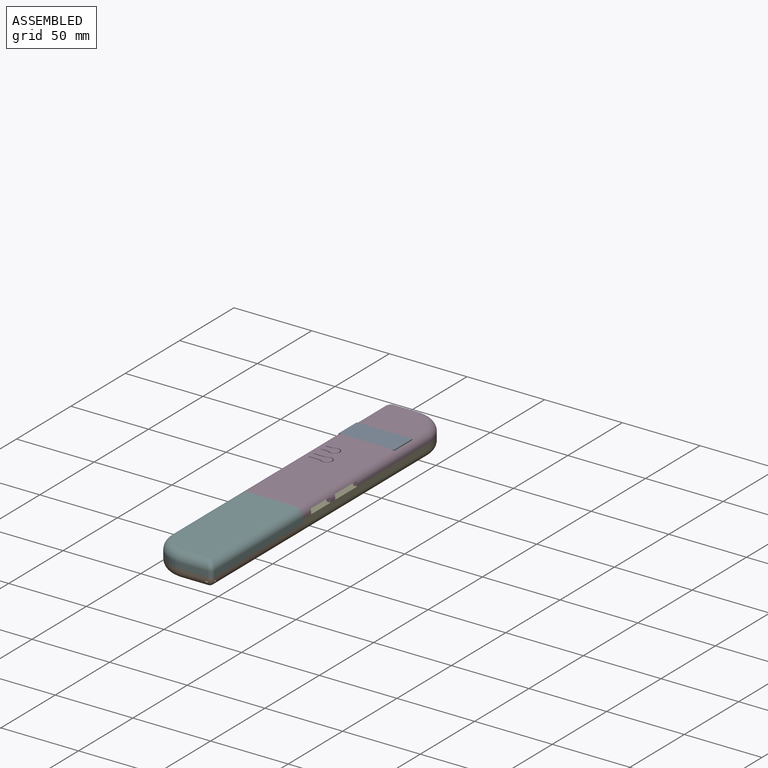
[diagram: assembled view]
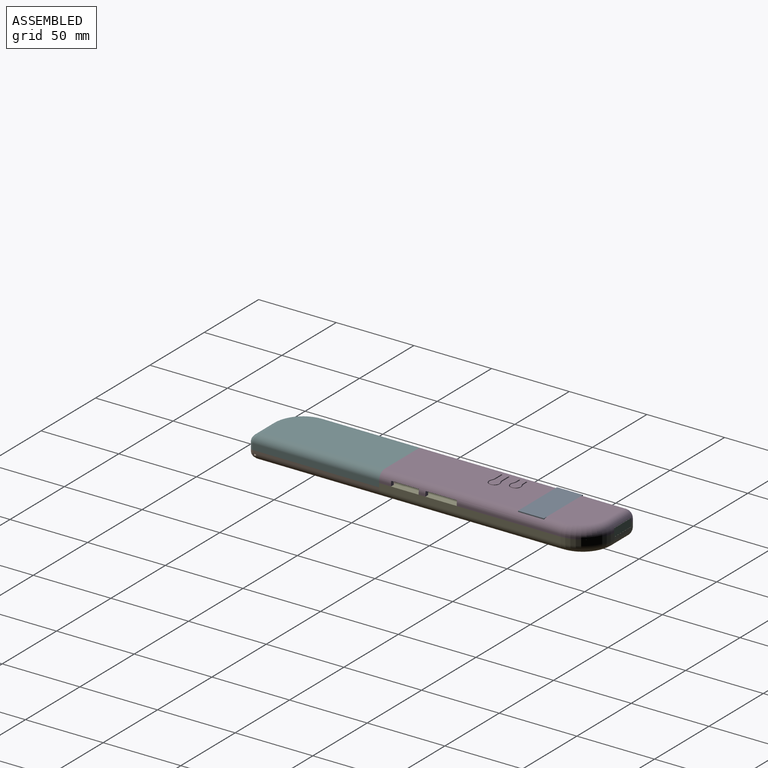
[diagram: assembled view, second angle]
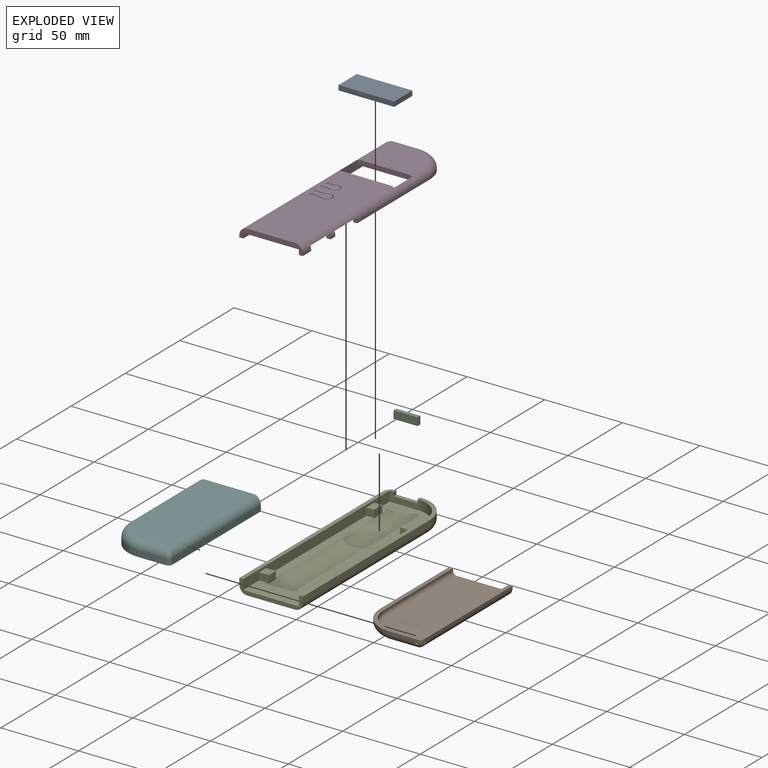
[diagram: exploded view]
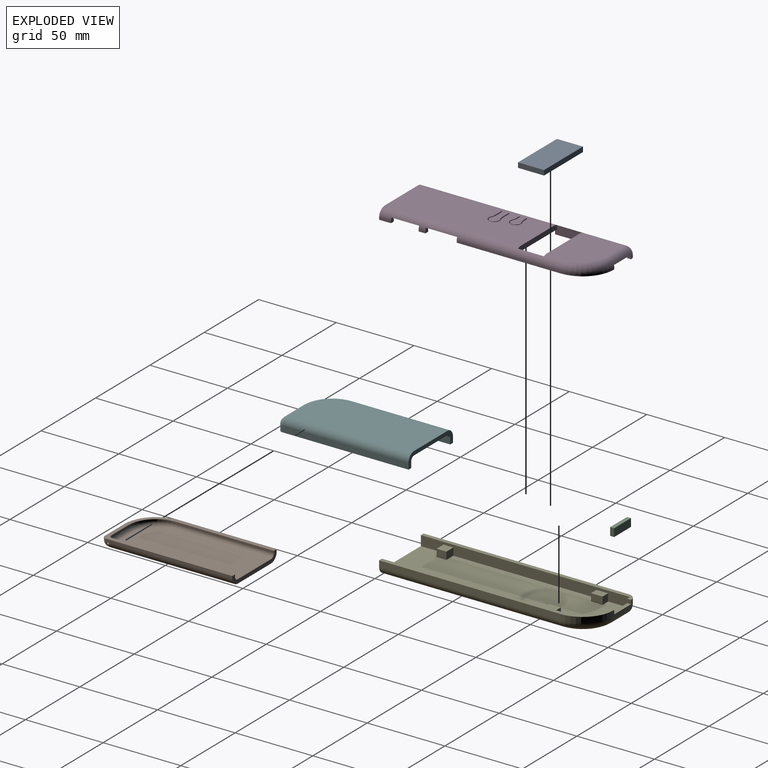
[diagram: exploded view, second angle]
ASSEMBLY  parts=6 mates=5
PART A: 6 faces, bbox 35.8x16.8x3.2 mm
  f0: plane 35.81x3.18mm, normal (0,1,0), area 113.7mm2, adj f1,f3,f4,f5
  f1: plane 16.76x3.18mm, normal (-1,0,0), area 53.2mm2, adj f0,f2,f4,f5
  f2: plane 35.81x3.18mm, normal (0,-1,0), area 113.7mm2, adj f1,f3,f4,f5
  f3: plane 16.76x3.18mm, normal (1,0,0), area 53.2mm2, adj f0,f2,f4,f5
  f4: plane 35.81x16.76mm, normal (0,0,1), area 600.4mm2, adj f0,f1,f2,f3
  f5: plane 35.81x16.76mm, normal (0,0,-1), area 600.4mm2, adj f0,f1,f2,f3
PART B: 29 faces, bbox 43.1x85.5x8.7 mm
  f0: cylinder r=5.08mm len=81.28mm, axis (0,1,0), area 637.6mm2, adj f5,f6,f12,f16,f25
  f1: cylinder r=5.08mm len=18.03mm, axis (1,0,0), area 132.9mm2, adj f4,f12,f16,f17,f27
  f2: plane 63.5x1.27mm, normal (-1,0,0), area 80.6mm2, adj f3,f6,f11,f18
  f3: cylinder r=20.32mm len=20.32mm, axis (0,0,-1), area 40.5mm2, adj f2,f4,f11,f17
  f4: plane 18.03x1.27mm, normal (0,-1,0), area 22.9mm2, adj f1,f3,f11,f15
  f5: plane 81.28x1.27mm, normal (1,0,0), area 103.2mm2, adj f0,f6,f11,f15
  f6: plane 40.89x6.35mm, normal (0,1,0), area 114.9mm2, adj f0,f2,f5,f7,f10,f11,f12,f13
  f7: plane 78.74x1.27mm, normal (-1,0,0), area 100mm2, adj f6,f11,f14,f19
  f8: plane 15.49x1.27mm, normal (0,1,0), area 19.7mm2, adj f9,f11,f14,f21
  f9: cylinder r=17.78mm len=17.78mm, axis (0,0,-1), area 35.5mm2, adj f8,f10,f11,f22
  f10: plane 63.5x1.27mm, normal (1,0,0), area 80.6mm2, adj f6,f9,f11,f23
  f11: plane 83.82x40.89mm, normal (0,0,1), area 496mm2, adj f2,f3,f4,f5,f6,f7,f8,f9
  f12: plane 78.74x30.73mm, normal (0,0,-1), area 2370.2mm2, adj f0,f1,f6,f17,f18
  f13: plane 78.74x30.73mm, normal (0,0,1), area 2370.2mm2, adj f6,f19,f21,f22,f23
  f14: cylinder r=2.54mm len=2.54mm, axis (0,0,1), area 5.1mm2, adj f7,f8,f11,f20
  f15: cylinder r=2.54mm len=2.54mm, axis (0,0,1), area 5.1mm2, adj f4,f5,f11,f16
  f16: bspline ~5.33x5.08mm, area 21.3mm2, adj f0,f1,f15,f26,f28
  f17: torus R=15.24mm, axis (0,0,1), area 231.6mm2, adj f1,f3,f12,f18
  f18: cylinder r=5.08mm len=63.5mm, axis (0,-1,0), area 506.7mm2, adj f2,f6,f12,f17
  f19: cylinder r=2.54mm len=78.74mm, axis (0,-1,0), area 314.2mm2, adj f6,f7,f13,f20
  f20: sphere r=2.54mm, area 10.1mm2, adj f14,f19,f21
  f21: cylinder r=2.54mm len=15.49mm, axis (-1,0,0), area 61.8mm2, adj f8,f13,f20,f22
  f22: torus R=15.24mm, axis (0,0,1), area 105.6mm2, adj f9,f13,f21,f23
  f23: cylinder r=2.54mm len=63.5mm, axis (0,1,0), area 253.4mm2, adj f6,f10,f13,f22
  f24: cylinder r=0.51mm len=5.02mm, axis (0.71,0.71,0), area 14mm2, adj f25,f26,f27,f28
  f25: bspline ~2.08x1.6mm, area 1.6mm2, adj f0,f24,f26
  f26: bspline ~1.04x0.74mm, area 0.5mm2, adj f16,f24,f25
  f27: bspline ~2.08x1.6mm, area 1.6mm2, adj f1,f24,f28
  f28: bspline ~1.13x0.74mm, area 0.5mm2, adj f16,f24,f27
PART C: 6 faces, bbox 15.5x2.5x5.1 mm
  f0: plane 5.08x2.54mm, normal (1,0,0), area 12.9mm2, adj f1,f3,f4,f5
  f1: plane 15.49x2.54mm, normal (0,0,-1), area 39.4mm2, adj f0,f2,f4,f5
  f2: plane 5.08x2.54mm, normal (-1,0,0), area 12.9mm2, adj f1,f3,f4,f5
  f3: plane 15.49x2.54mm, normal (0,0,1), area 39.4mm2, adj f0,f2,f4,f5
  f4: plane 15.49x5.08mm, normal (0,1,0), area 78.7mm2, adj f0,f1,f2,f3
  f5: plane 15.49x5.08mm, normal (0,-1,0), area 78.7mm2, adj f0,f1,f2,f3
PART D: 77 faces, bbox 42.8x139x6.9 mm
  f0: plane 50.8x5.08mm, normal (0,0,-1), area 129.9mm2, adj f12,f14,f24,f25,f40,f74
  f1: plane 6.19x2.54mm, normal (0,-1,0), area 10.2mm2, adj f5,f53,f54,f57,f64,f73
  f2: plane 2.94x2.52mm, normal (0,-1,0), area 5.1mm2, adj f5,f55,f62,f71,f72
  f3: plane 87.63x40.15mm, normal (0,0,-1), area 3116mm2, adj f11,f12,f15,f18,f20,f21,f23,f24
  f4: plane 6.6x6.1mm, normal (0,0,-1), area 31.7mm2, adj f51,f55,f62,f63
  f5: plane 87.63x30.73mm, normal (0,0,1), area 2659.2mm2, adj f1,f2,f11,f15,f35,f38,f41,f42
  f6: plane 6.6x6.1mm, normal (0,0,-1), area 31.7mm2, adj f45,f54,f56,f57
  f7: plane 66.89x1.27mm, normal (1,0,0), area 84.9mm2, adj f17,f23,f27,f35
  f8: plane 4.32x1.27mm, normal (1,0,0), area 5.5mm2, adj f28,f29,f31,f35
  f9: plane 71.12x1.27mm, normal (-1,0,0), area 90.3mm2, adj f15,f21,f22,f38
  f10: plane 35.81x30.23mm, normal (0,0,-1), area 1014.7mm2, adj f12,f13,f18,f25,f26
  f11: plane 35.81x3.18mm, normal (0,1,0), area 112.6mm2, adj f3,f5,f12,f18,f35,f38
  f12: plane 48.26x5.67mm, normal (1,0,0), area 195mm2, adj f0,f3,f10,f11,f13,f24,f25,f38
  f13: plane 35.81x3.18mm, normal (0,-1,0), area 112.6mm2, adj f10,f12,f18,f19,f35,f38
  f14: plane 45.72x1.27mm, normal (-1,0,0), area 58.1mm2, adj f0,f24,f38,f40
  f15: plane 40.89x6.35mm, normal (0,-1,0), area 134.9mm2, adj f3,f5,f9,f16,f20,f22,f32,f34
  f16: plane 7.62x1.27mm, normal (1,0,0), area 9.7mm2, adj f15,f33,f34,f35
  f17: cylinder r=20.32mm len=20.32mm, axis (0,0,1), area 40.5mm2, adj f7,f27,f36,f76
  f18: plane 66.89x5.67mm, normal (-1,0,0), area 254.2mm2, adj f3,f10,f11,f13,f23,f26,f27,f35
  f19: plane 30.73x27.69mm, normal (0,0,1), area 801.1mm2, adj f13,f35,f36,f37,f38
  f20: plane 71.12x3.18mm, normal (1,0,0), area 225.8mm2, adj f3,f15,f21,f22
  f21: plane 3.18x2.54mm, normal (0,1,0), area 7.8mm2, adj f3,f9,f20,f22,f38
  f22: plane 71.12x2.54mm, normal (0,0,-1), area 180.6mm2, adj f9,f15,f20,f21
  f23: plane 3.18x2.54mm, normal (0,-1,0), area 7.8mm2, adj f3,f7,f18,f27,f35
  f24: plane 3.18x2.54mm, normal (0,-1,0), area 7.8mm2, adj f0,f3,f12,f14,f38
  f25: plane 18.03x3.18mm, normal (0,-1,0), area 17.9mm2, adj f0,f10,f12,f26,f74,f75
  f26: cylinder r=17.78mm len=17.78mm, axis (0,0,1), area 88.7mm2, adj f10,f18,f25,f27,f76
  f27: plane 87.21x20.32mm, normal (0,0,-1), area 245.9mm2, adj f7,f17,f18,f23,f26,f76
  f28: plane 3.18x2.54mm, normal (0,-1,0), area 7.8mm2, adj f3,f8,f30,f31,f35
  f29: plane 3.18x2.54mm, normal (0,1,0), area 7.8mm2, adj f3,f8,f30,f31,f35
  f30: plane 4.32x3.18mm, normal (-1,0,0), area 13.7mm2, adj f3,f28,f29,f31
  f31: plane 4.32x2.54mm, normal (0,0,-1), area 11mm2, adj f8,f28,f29,f30
  f32: plane 7.62x3.18mm, normal (-1,0,0), area 24.2mm2, adj f3,f15,f33,f34
  f33: plane 3.18x2.54mm, normal (0,1,0), area 7.8mm2, adj f3,f16,f32,f34,f35
  f34: plane 7.62x2.54mm, normal (0,0,-1), area 19.4mm2, adj f15,f16,f32,f33
  f35: cylinder r=5.08mm len=116.84mm, axis (0,1,0), area 813.5mm2, adj f3,f5,f7,f8,f11,f13,f15,f16
  f36: torus R=15.24mm, axis (0,0,1), area 231.6mm2, adj f17,f19,f35,f37,f76
  f37: cylinder r=5.08mm len=15.49mm, axis (-1,0,0), area 103.7mm2, adj f19,f36,f39,f75
  f38: cylinder r=5.08mm len=132.08mm, axis (0,-1,0), area 979.6mm2, adj f3,f5,f9,f11,f12,f13,f14,f15
  f39: sphere r=5.08mm, area 40.5mm2, adj f37,f38,f40,f74
  f40: cylinder r=5.08mm len=5.08mm, axis (0,0,1), area 10.1mm2, adj f0,f14,f39,f74
  f41: plane 6.29x3.18mm, normal (0,-1,0), area 20mm2, adj f3,f5,f59,f66
  f42: cylinder r=3.56mm len=7.11mm, axis (0,0,-1), area 45.9mm2, adj f3,f5,f58,f59
  f43: plane 6.29x3.18mm, normal (0,1,0), area 20mm2, adj f3,f5,f58,f65
  f44: plane 5.03x3.18mm, normal (1,0,0), area 8.5mm2, adj f3,f5,f64,f65,f66,f67,f73
  f45: cylinder r=3.05mm len=6.1mm, axis (0,0,-1), area 40.8mm2, adj f5,f6,f56,f57
  f46: plane 6.19x2.54mm, normal (0,1,0), area 10.2mm2, adj f5,f53,f54,f56,f67,f73
  f47: plane 3.18x3.06mm, normal (0,-1,0), area 9.7mm2, adj f3,f5,f60,f69
  f48: cylinder r=3.56mm len=7.11mm, axis (0,0,-1), area 45.9mm2, adj f3,f5,f60,f61
  f49: plane 3.18x3.06mm, normal (0,1,0), area 9.7mm2, adj f3,f5,f61,f70
  f50: plane 5.03x3.18mm, normal (1,0,0), area 8.4mm2, adj f3,f5,f68,f69,f70,f71,f72
  f51: cylinder r=3.05mm len=6.1mm, axis (0,0,-1), area 40.8mm2, adj f4,f5,f62,f63
  f52: plane 2.94x2.52mm, normal (0,1,0), area 5.1mm2, adj f5,f55,f63,f68,f72
  f53: plane 3.81x3.04mm, normal (0,0,-1), area 10.9mm2, adj f1,f46,f54,f73
  f54: torus R=7.25mm, axis (0,0,-1), area 16.8mm2, adj f1,f6,f46,f53,f56,f57
  f55: torus R=7.25mm, axis (0,0,-1), area 15.3mm2, adj f2,f4,f52,f62,f63,f72
  f56: cylinder r=5.08mm len=3.18mm, axis (0,0,-1), area 8.1mm2, adj f5,f6,f45,f46,f54
  f57: cylinder r=5.08mm len=3.18mm, axis (0,0,-1), area 8.1mm2, adj f1,f5,f6,f45,f54
  f58: cylinder r=5.08mm len=3.18mm, axis (0,0,-1), area 7.5mm2, adj f3,f5,f42,f43
  f59: cylinder r=5.08mm len=3.18mm, axis (0,0,-1), area 7.5mm2, adj f3,f5,f41,f42
  f60: cylinder r=5.08mm len=3.18mm, axis (0,0,-1), area 7.5mm2, adj f3,f5,f47,f48
  f61: cylinder r=5.08mm len=3.18mm, axis (0,0,-1), area 7.5mm2, adj f3,f5,f48,f49
  f62: cylinder r=5.08mm len=3.18mm, axis (0,0,-1), area 8.1mm2, adj f2,f4,f5,f51,f55
  f63: cylinder r=5.08mm len=3.18mm, axis (0,0,-1), area 8.1mm2, adj f4,f5,f51,f52,f55
  f64: cylinder r=0.13mm len=1.84mm, axis (0,0,-1), area 0.3mm2, adj f1,f5,f44,f73
  f65: cylinder r=0.13mm len=3.18mm, axis (0,0,1), area 0.6mm2, adj f3,f5,f43,f44
  f66: cylinder r=0.13mm len=3.18mm, axis (0,0,-1), area 0.6mm2, adj f3,f5,f41,f44
  f67: cylinder r=0.13mm len=1.84mm, axis (0,0,1), area 0.3mm2, adj f5,f44,f46,f73
  f68: cylinder r=0.13mm len=1.84mm, axis (0,0,1), area 0.3mm2, adj f5,f50,f52,f72
  f69: cylinder r=0.13mm len=3.18mm, axis (0,0,-1), area 0.6mm2, adj f3,f5,f47,f50
  f70: cylinder r=0.13mm len=3.18mm, axis (0,0,1), area 0.6mm2, adj f3,f5,f49,f50
  f71: cylinder r=0.13mm len=1.84mm, axis (0,0,-1), area 0.3mm2, adj f2,f5,f50,f72
  f72: bspline ~7.2x0.32mm, area 1.6mm2, adj f2,f50,f52,f55,f68,f71
  f73: cylinder r=0.25mm len=4.06mm, axis (0,1,0), area 1.6mm2, adj f1,f44,f46,f53,f64,f67
  f74: plane 2.54x2.54mm, normal (1,0,0), area 6.4mm2, adj f0,f25,f39,f40,f75
  f75: plane 15.49x2.38mm, normal (0,0,-1), area 36.9mm2, adj f25,f37,f74,f76
  f76: plane 2.54x2.54mm, normal (-1,0,0), area 6.4mm2, adj f17,f26,f27,f36,f75
PART E: 37 faces, bbox 42.6x138.8x8.9 mm
  f0: plane 137.16x5.08mm, normal (0,0,1), area 349.3mm2, adj f1,f17,f18,f19,f22,f36
  f1: plane 18.03x6.35mm, normal (0,-1,0), area 75.2mm2, adj f0,f12,f19,f21,f34,f36
  f2: plane 6.98x4.78mm, normal (0,1,0), area 33.3mm2, adj f3,f13,f21,f30
  f3: plane 7.33x4.78mm, normal (-1,0,0), area 35mm2, adj f2,f4,f21,f30
  f4: plane 6.98x4.78mm, normal (0,-1,0), area 33.3mm2, adj f3,f13,f21,f30
  f5: plane 6.35x4.78mm, normal (0,-1,0), area 30.3mm2, adj f6,f19,f21,f28
  f6: plane 6.34x4.78mm, normal (1,0,0), area 30.3mm2, adj f5,f7,f21,f28
  f7: plane 6.35x4.78mm, normal (0,1,0), area 30.3mm2, adj f6,f19,f21,f28
  f8: plane 5.08x4.78mm, normal (0,-1,0), area 24.3mm2, adj f9,f19,f21,f29
  f9: plane 7.5x4.78mm, normal (1,0,0), area 35.8mm2, adj f8,f10,f21,f29
  f10: plane 5.08x4.78mm, normal (0,1,0), area 24.3mm2, adj f9,f19,f21,f29
  f11: plane 137.16x20.32mm, normal (0,0,1), area 372.8mm2, adj f12,f13,f14,f15,f18,f35
  f12: cylinder r=17.78mm len=17.78mm, axis (0,0,-1), area 177.3mm2, adj f1,f11,f13,f21,f35
  f13: plane 116.84x6.35mm, normal (-1,0,0), area 706.9mm2, adj f2,f4,f11,f12,f18,f21,f30
  f14: plane 116.84x3.81mm, normal (1,0,0), area 445.2mm2, adj f11,f15,f18,f27
  f15: cylinder r=20.32mm len=20.32mm, axis (0,0,-1), area 121.6mm2, adj f11,f14,f16,f26,f35
  f16: plane 15.49x1.27mm, normal (0,1,0), area 19.7mm2, adj f15,f22,f25,f34
  f17: plane 132.08x3.81mm, normal (-1,0,0), area 503.2mm2, adj f0,f18,f22,f23
  f18: plane 40.89x8.89mm, normal (0,-1,0), area 125.1mm2, adj f0,f11,f13,f14,f17,f19,f20,f21
  f19: plane 134.62x6.35mm, normal (1,0,0), area 788.8mm2, adj f0,f1,f5,f7,f8,f10,f18,f21
  f20: plane 132.08x30.73mm, normal (0,0,-1), area 4009.5mm2, adj f18,f23,f25,f26,f27
  f21: plane 134.62x35.81mm, normal (0,0,1), area 3949.2mm2, adj f1,f2,f3,f4,f5,f6,f7,f8
  f22: cylinder r=5.08mm len=5.08mm, axis (0,0,-1), area 30.4mm2, adj f0,f16,f17,f24,f36
  f23: cylinder r=5.08mm len=132.08mm, axis (0,-1,0), area 1054mm2, adj f17,f18,f20,f24
  f24: sphere r=5.08mm, area 40.5mm2, adj f22,f23,f25
  f25: cylinder r=5.08mm len=15.49mm, axis (-1,0,0), area 123.6mm2, adj f16,f20,f24,f26
  f26: torus R=15.24mm, axis (0,0,1), area 231.6mm2, adj f15,f20,f25,f27
  f27: cylinder r=5.08mm len=116.84mm, axis (0,1,0), area 932.3mm2, adj f14,f18,f20,f26
  f28: plane 6.35x6.34mm, normal (0,0,1), area 40.3mm2, adj f5,f6,f7,f19
  f29: plane 7.5x5.08mm, normal (0,0,1), area 38.1mm2, adj f8,f9,f10,f19
  f30: plane 7.33x6.98mm, normal (0,0,1), area 51.2mm2, adj f2,f3,f4,f13
  f31: plane 19.47x19.47mm, normal (0,0,1), area 297.8mm2, adj f32
  f32: torus R=9.74mm, axis (0,0,-1), area 177.3mm2, adj f31,f33
  f33: torus R=14.65mm, axis (0,0,1), area 216.1mm2, adj f21,f32
  f34: plane 15.49x2.54mm, normal (0,0,1), area 39.4mm2, adj f1,f16,f35,f36
  f35: plane 2.54x2.54mm, normal (-1,0,0), area 6.5mm2, adj f11,f12,f15,f34
  f36: plane 2.54x2.54mm, normal (1,0,0), area 6.5mm2, adj f0,f1,f22,f34
PART F: 24 faces, bbox 42.6x85.5x8.9 mm
  f0: plane 40.89x8.89mm, normal (0,1,0), area 127.8mm2, adj f1,f4,f5,f6,f7,f10,f11,f14
  f1: plane 63.5x3.81mm, normal (-1,0,0), area 241.9mm2, adj f0,f2,f11,f14
  f2: cylinder r=20.32mm len=20.32mm, axis (0,0,-1), area 121.6mm2, adj f1,f3,f11,f15
  f3: plane 18.03x3.81mm, normal (0,-1,0), area 68.7mm2, adj f2,f11,f13,f16
  f4: plane 81.28x3.81mm, normal (1,0,0), area 309.7mm2, adj f0,f11,f13,f18
  f5: plane 78.74x30.73mm, normal (0,0,1), area 2370.2mm2, adj f0,f14,f15,f16,f18
  f6: plane 78.74x30.73mm, normal (0,0,-1), area 2370.2mm2, adj f0,f19,f20,f21,f23
  f7: plane 78.74x3.81mm, normal (-1,0,0), area 300mm2, adj f0,f11,f12,f23
  f8: plane 15.49x3.81mm, normal (0,1,0), area 59mm2, adj f9,f11,f12,f21
  f9: cylinder r=17.78mm len=17.78mm, axis (0,0,1), area 106.4mm2, adj f8,f10,f11,f20
  f10: plane 63.5x3.81mm, normal (1,0,0), area 241.9mm2, adj f0,f9,f11,f19
  f11: plane 83.82x40.89mm, normal (0,0,-1), area 496mm2, adj f0,f1,f2,f3,f4,f7,f8,f9
  f12: cylinder r=2.54mm len=3.81mm, axis (0,0,-1), area 15.2mm2, adj f7,f8,f11,f22
  f13: cylinder r=2.54mm len=3.81mm, axis (0,0,1), area 15.2mm2, adj f3,f4,f11,f17
  f14: cylinder r=5.08mm len=63.5mm, axis (0,1,0), area 506.7mm2, adj f0,f1,f5,f15
  f15: torus R=15.24mm, axis (0,0,1), area 231.6mm2, adj f2,f5,f14,f16
  f16: cylinder r=5.08mm len=18.03mm, axis (-1,0,0), area 136.5mm2, adj f3,f5,f15,f17
  f17: bspline ~6.07x5.08mm, area 21.3mm2, adj f13,f16,f18
  f18: cylinder r=5.08mm len=81.28mm, axis (0,-1,0), area 641.2mm2, adj f0,f4,f5,f17
  f19: cylinder r=2.54mm len=63.5mm, axis (0,1,0), area 253.4mm2, adj f0,f6,f10,f20
  f20: torus R=15.24mm, axis (0,0,1), area 105.6mm2, adj f6,f9,f19,f21
  f21: cylinder r=2.54mm len=15.49mm, axis (-1,0,0), area 61.8mm2, adj f6,f8,f20,f22
  f22: sphere r=2.54mm, area 10.1mm2, adj f12,f21,f23
  f23: cylinder r=2.54mm len=78.74mm, axis (0,-1,0), area 314.2mm2, adj f0,f6,f7,f22
PLACE A t=(16.52,-43.48,8.35)mm
PLACE B t=(16.52,-37.42,-3.71)mm
PLACE C t=(16.52,-46.1,-1.17)mm
PLACE D t=(16.52,-43.48,11.53)mm
PLACE E t=(16.52,-43.48,-1.17)mm
PLACE F t=(16.52,-37.42,8.99)mm
MATE fastened C.f3 <-> D.f75  axis (0,0,1) through (23.62,39.67,7.72)mm
MATE fastened D.f0 <-> E.f0  axis (0,0,-1) through (13.33,38.48,5.18)mm
MATE fastened F.f1 <-> B.f2  axis (-1,0,0) through (10.79,-96.14,2.64)mm
MATE fastened D.f19 <-> A.f4  axis (0,0,1) through (31.24,8.25,11.53)mm
MATE fastened B.f12 <-> E.f20  axis (0,0,-1) through (31.24,-96.14,-3.71)mm
